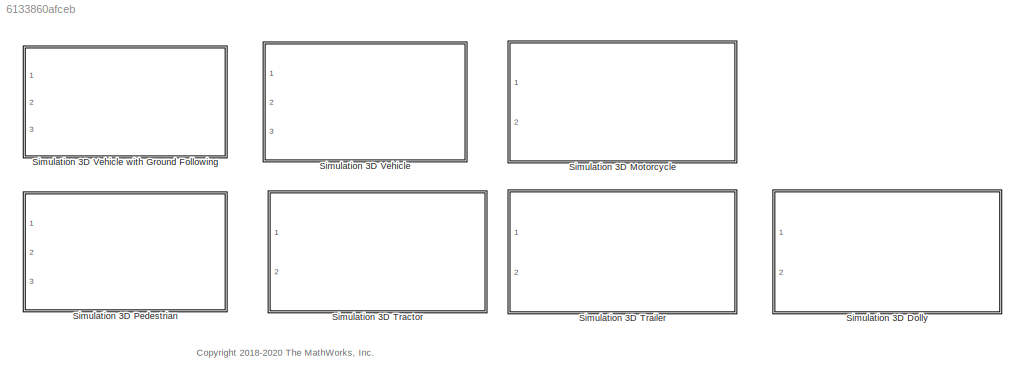
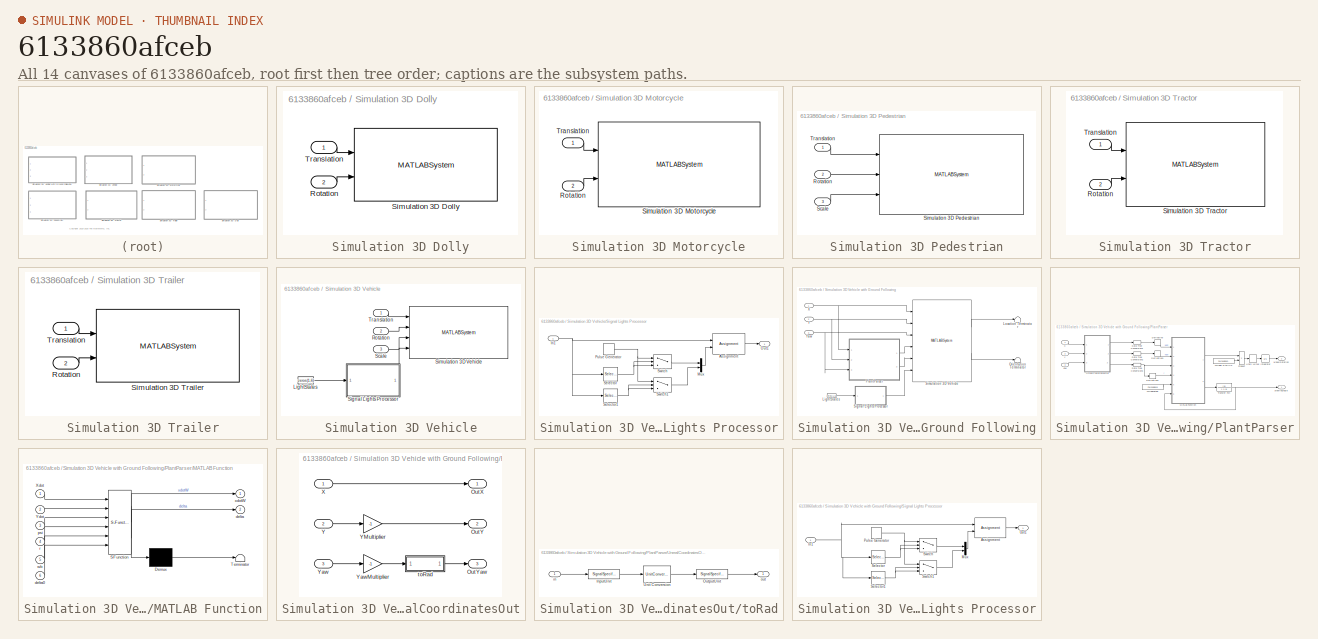
[diagram: thumbnail index - all 14 canvases of the model, root first then tree order]
MODEL slx_6133860afceb
KIND library
CONFIG AbsTol = auto
CONFIG EnableMultiTasking = off
CONFIG FixedStep = auto
CONFIG MaxStep = auto
CONFIG MinStep = auto
CONFIG RelTol = 1e-3
CONFIG SampleTimeConstraint = Unconstrained
CONFIG SolverName = VariableStepAuto
CONFIG StartTime = 0.0
CONFIG StopTime = 10.0
BLOCK [SubSystem] Simulation 3D Dolly
  CopyFcn = sim3d.SimPool.copyCallback(gcb);
  DestroyFcn = sim3d.SimPool.DestroyCallback(gcb)
  LoadFcn = sim3d.SimPool.loadCallback(gcb)
  NameChangeFcn = sim3d.SimPool.nameChangeCallback(gcb)
  Ports = [2]
  PostSaveFcn = sim3d.SimPool.postSaveCallback(gcb)
  PreDeleteFcn = sim3d.SimPool.preDeleteCallback(gcb);
  Priority = -1
  RequestExecContextInheritance = off
  UndoDeleteFcn = sim3d.SimPool.UndoDeleteCallback(gcb)
BLOCK [Inport] Simulation 3D Dolly/Rotation
  Port = 2
BLOCK [MATLABSystem] Simulation 3D Dolly/Simulation 3D Dolly
  MaskDisplay = disp('Dolly');\nport_label('input',1,'translation');\nport_label('input',2,'rotation');
  MaskType = Simulation3DDolly
  Mesh = One-axle dolly
  Ports = [2]
  Rotation = Rotation
  SampleTime = SampleTime
  Scale = Scale
  System = Simulation3DDolly
  Translation = Translation
BLOCK [Inport] Simulation 3D Dolly/Translation
BLOCK [SubSystem] Simulation 3D Motorcycle
  CopyFcn = sim3d.SimPool.copyCallback(gcb);
  DestroyFcn = sim3d.SimPool.DestroyCallback(gcb)
  LoadFcn = sim3d.SimPool.loadCallback(gcb)
  NameChangeFcn = sim3d.SimPool.nameChangeCallback(gcb)
  Ports = [2]
  PostSaveFcn = sim3d.SimPool.postSaveCallback(gcb)
  PreDeleteFcn = sim3d.SimPool.preDeleteCallback(gcb);
  Priority = -1
  RequestExecContextInheritance = off
  UndoDeleteFcn = sim3d.SimPool.UndoDeleteCallback(gcb)
BLOCK [Inport] Simulation 3D Motorcycle/Rotation
  Port = 2
BLOCK [MATLABSystem] Simulation 3D Motorcycle/Simulation 3D Motorcycle
  MaskDisplay = disp('Motorcycle');\nport_label('input',1,'translation');\nport_label('input',2,'rotation');
  MaskType = Simulation3DMotorcycle
  Mesh = Sports bike
  MotorcycleColor = Red
  Ports = [2]
  Rotation = Rotation
  SampleTime = SampleTime
  Scale = ones( 5, 3 )
  System = Simulation3DMotorcycle
  Translation = Translation
BLOCK [Inport] Simulation 3D Motorcycle/Translation
BLOCK [SubSystem] Simulation 3D Pedestrian
  CopyFcn = sim3d.SimPool.copyCallback(gcb);
  DestroyFcn = sim3d.SimPool.DestroyCallback(gcb)
  LoadFcn = sim3d.SimPool.loadCallback(gcb)
  NameChangeFcn = sim3d.SimPool.nameChangeCallback(gcb)
  Ports = [3]
  PostSaveFcn = sim3d.SimPool.postSaveCallback(gcb)
  PreDeleteFcn = sim3d.SimPool.preDeleteCallback(gcb);
  Priority = -1
  RequestExecContextInheritance = off
  UndoDeleteFcn = sim3d.SimPool.UndoDeleteCallback(gcb)
BLOCK [Inport] Simulation 3D Pedestrian/Rotation
  Port = 2
  Unit = m
BLOCK [Inport] Simulation 3D Pedestrian/Scale
  Port = 3
  Unit = deg
BLOCK [MATLABSystem] Simulation 3D Pedestrian/Simulation 3D Pedestrian
  ActorTag = Pedestrian1
  HairColor = Red
  MaskDisplay = disp('Pedestrian');\nport_label('input',1,'translation');\nport_label('input',2,'rotation');\nport_label('input',3,'scale');
  MaskType = Simulation3DPedestrian
  PedestrianType = human_01
  Ports = [3]
  SampleTime = SampleTime
  SkinTone = Red
  System = Simulation3DPedestrian
  ZoffsetPos = ZoffsetPos
BLOCK [Inport] Simulation 3D Pedestrian/Translation
  Unit = m
BLOCK [SubSystem] Simulation 3D Tractor
  CopyFcn = sim3d.SimPool.copyCallback(gcb);
  DestroyFcn = sim3d.SimPool.DestroyCallback(gcb)
  LoadFcn = sim3d.SimPool.loadCallback(gcb)
  NameChangeFcn = sim3d.SimPool.nameChangeCallback(gcb)
  Ports = [2]
  PostSaveFcn = sim3d.SimPool.postSaveCallback(gcb)
  PreDeleteFcn = sim3d.SimPool.preDeleteCallback(gcb);
  Priority = -1
  RequestExecContextInheritance = off
  UndoDeleteFcn = sim3d.SimPool.UndoDeleteCallback(gcb)
BLOCK [Inport] Simulation 3D Tractor/Rotation
  Port = 2
BLOCK [MATLABSystem] Simulation 3D Tractor/Simulation 3D Tractor
  MaskDisplay = disp('Tractor');\nport_label('input',1,'translation');\nport_label('input',2,'rotation');
  MaskType = Simulation3DTractor
  Mesh = Conventional tractor
  Ports = [2]
  Rotation = Rotation
  SampleTime = SampleTime
  System = Simulation3DTractor
  TractorColor = Red
  Translation = Translation
BLOCK [Inport] Simulation 3D Tractor/Translation
BLOCK [SubSystem] Simulation 3D Trailer
  CopyFcn = sim3d.SimPool.copyCallback(gcb);
  DestroyFcn = sim3d.SimPool.DestroyCallback(gcb)
  LoadFcn = sim3d.SimPool.loadCallback(gcb)
  NameChangeFcn = sim3d.SimPool.nameChangeCallback(gcb)
  Ports = [2]
  PostSaveFcn = sim3d.SimPool.postSaveCallback(gcb)
  PreDeleteFcn = sim3d.SimPool.preDeleteCallback(gcb);
  Priority = -1
  RequestExecContextInheritance = off
  UndoDeleteFcn = sim3d.SimPool.UndoDeleteCallback(gcb)
BLOCK [Inport] Simulation 3D Trailer/Rotation
  Port = 2
BLOCK [MATLABSystem] Simulation 3D Trailer/Simulation 3D Trailer
  MaskDisplay = disp('Trailer');\nport_label('input',1,'translation');\nport_label('input',2,'rotation');
  MaskType = Simulation3DTrailer
  Mesh = Two-axle trailer
  Ports = [2]
  Rotation = Rotation
  SampleTime = SampleTime
  System = Simulation3DTrailer
  Translation = Translation
BLOCK [Inport] Simulation 3D Trailer/Translation
BLOCK [SubSystem] Simulation 3D Vehicle
  CopyFcn = sim3d.SimPool.copyCallback(gcb);
  DestroyFcn = sim3d.SimPool.DestroyCallback(gcb)
  LoadFcn = sim3d.SimPool.loadCallback(gcb)
  NameChangeFcn = sim3d.SimPool.nameChangeCallback(gcb)
  Ports = [3]
  PostSaveFcn = sim3d.SimPool.postSaveCallback(gcb)
  PreDeleteFcn = sim3d.SimPool.preDeleteCallback(gcb);
  Priority = -1
  RequestExecContextInheritance = off
  UndoDeleteFcn = sim3d.SimPool.UndoDeleteCallback(gcb)
BLOCK [SubSystem] Simulation 3D Vehicle with Ground Following
  CopyFcn = sim3d.SimPool.copyCallback(gcb);
  DestroyFcn = sim3d.SimPool.DestroyCallback(gcb)
  LoadFcn = sim3d.SimPool.loadCallback(gcb)
  NameChangeFcn = sim3d.SimPool.nameChangeCallback(gcb)
  Ports = [3]
  PostSaveFcn = sim3d.SimPool.postSaveCallback(gcb)
  PreDeleteFcn = sim3d.SimPool.preDeleteCallback(gcb);
  Priority = -1
  RequestExecContextInheritance = off
  UndoDeleteFcn = sim3d.SimPool.UndoDeleteCallback(gcb)
BLOCK [Constant] Simulation 3D Vehicle with Ground Following/LightStates
  Value = zeros(1,6)
BLOCK [Terminator] Simulation 3D Vehicle with Ground Following/Location Terminator
BLOCK [Terminator] Simulation 3D Vehicle with Ground Following/Orientation Terminator
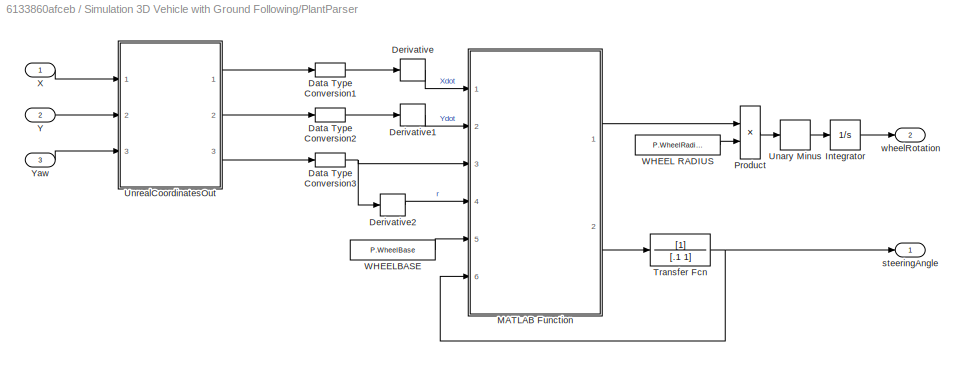
BLOCK [SubSystem] Simulation 3D Vehicle with Ground Following/PlantParser
  Ports = [3, 2]
  RequestExecContextInheritance = off
BLOCK [DataTypeConversion] Simulation 3D Vehicle with Ground Following/PlantParser/Data Type Conversion1
  OutDataTypeStr = double
  RndMeth = Floor
  SaturateOnIntegerOverflow = off
BLOCK [DataTypeConversion] Simulation 3D Vehicle with Ground Following/PlantParser/Data Type Conversion2
  OutDataTypeStr = double
  RndMeth = Floor
  SaturateOnIntegerOverflow = off
BLOCK [DataTypeConversion] Simulation 3D Vehicle with Ground Following/PlantParser/Data Type Conversion3
  OutDataTypeStr = double
  RndMeth = Floor
  SaturateOnIntegerOverflow = off
BLOCK [Derivative] Simulation 3D Vehicle with Ground Following/PlantParser/Derivative
  CoefficientInTFapproximation = 1e-3
BLOCK [Derivative] Simulation 3D Vehicle with Ground Following/PlantParser/Derivative1
  CoefficientInTFapproximation = 1e-3
BLOCK [Derivative] Simulation 3D Vehicle with Ground Following/PlantParser/Derivative2
  CoefficientInTFapproximation = 1e-3
BLOCK [Integrator] Simulation 3D Vehicle with Ground Following/PlantParser/Integrator
  Ports = [1, 1]
  WrapState = on
  WrappedStateLowerValue = 0
  WrappedStateUpperValue = 2*pi
  ZeroCross = off
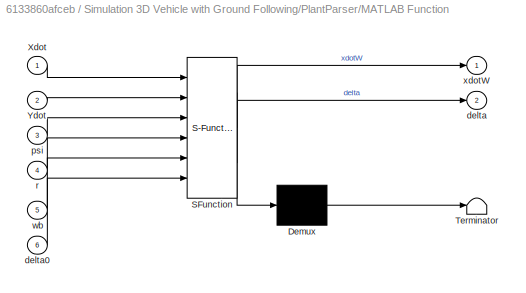
BLOCK [SubSystem] Simulation 3D Vehicle with Ground Following/PlantParser/MATLAB Function
  ErrorFcn = Stateflow.Translate.translate
  PermitHierarchicalResolution = ExplicitOnly
  Ports = [6, 2]
  RequestExecContextInheritance = off
  SFBlockType = MATLAB Function
  TreatAsAtomicUnit = on
BLOCK [Demux] Simulation 3D Vehicle with Ground Following/PlantParser/MATLAB Function/ Demux 
  Outputs = 1
  Ports = [1, 1]
BLOCK [S-Function] Simulation 3D Vehicle with Ground Following/PlantParser/MATLAB Function/ SFunction 
  EnableBusSupport = off
  FunctionName = sf_sfun
  PortCounts = [6 3]
  Ports = [6, 3]
  SFcnIsStateOwnerBlock = off
  SFunctionDeploymentMode = off
  Tag = Stateflow S-Function 1
BLOCK [Terminator] Simulation 3D Vehicle with Ground Following/PlantParser/MATLAB Function/ Terminator 
BLOCK [Inport] Simulation 3D Vehicle with Ground Following/PlantParser/MATLAB Function/Xdot
BLOCK [Inport] Simulation 3D Vehicle with Ground Following/PlantParser/MATLAB Function/Ydot
  Port = 2
BLOCK [Outport] Simulation 3D Vehicle with Ground Following/PlantParser/MATLAB Function/delta
  Port = 2
  VectorParamsAs1DForOutWhenUnconnected = off
BLOCK [Inport] Simulation 3D Vehicle with Ground Following/PlantParser/MATLAB Function/delta0
  Port = 6
BLOCK [Inport] Simulation 3D Vehicle with Ground Following/PlantParser/MATLAB Function/psi
  Port = 3
BLOCK [Inport] Simulation 3D Vehicle with Ground Following/PlantParser/MATLAB Function/r
  Port = 4
BLOCK [Inport] Simulation 3D Vehicle with Ground Following/PlantParser/MATLAB Function/wb
  Port = 5
BLOCK [Outport] Simulation 3D Vehicle with Ground Following/PlantParser/MATLAB Function/xdotW
  VectorParamsAs1DForOutWhenUnconnected = off
BLOCK [Product] Simulation 3D Vehicle with Ground Following/PlantParser/Product
  Inputs = */
  Ports = [2, 1]
BLOCK [TransferFcn] Simulation 3D Vehicle with Ground Following/PlantParser/Transfer Fcn
  Denominator = [.1 1]
BLOCK [UnaryMinus] Simulation 3D Vehicle with Ground Following/PlantParser/Unary Minus
BLOCK [SubSystem] Simulation 3D Vehicle with Ground Following/PlantParser/UnrealCoordinatesOut
  Ports = [3, 3]
  RequestExecContextInheritance = off
BLOCK [Outport] Simulation 3D Vehicle with Ground Following/PlantParser/UnrealCoordinatesOut/OutX
  VectorParamsAs1DForOutWhenUnconnected = off
BLOCK [Outport] Simulation 3D Vehicle with Ground Following/PlantParser/UnrealCoordinatesOut/OutY
  Port = 2
  VectorParamsAs1DForOutWhenUnconnected = off
BLOCK [Outport] Simulation 3D Vehicle with Ground Following/PlantParser/UnrealCoordinatesOut/OutYaw
  Port = 3
  VectorParamsAs1DForOutWhenUnconnected = off
BLOCK [Inport] Simulation 3D Vehicle with Ground Following/PlantParser/UnrealCoordinatesOut/X
BLOCK [Inport] Simulation 3D Vehicle with Ground Following/PlantParser/UnrealCoordinatesOut/Y
  Port = 2
BLOCK [Gain] Simulation 3D Vehicle with Ground Following/PlantParser/UnrealCoordinatesOut/YMultiplier
  Gain = -1
BLOCK [Inport] Simulation 3D Vehicle with Ground Following/PlantParser/UnrealCoordinatesOut/Yaw
  Port = 3
BLOCK [Gain] Simulation 3D Vehicle with Ground Following/PlantParser/UnrealCoordinatesOut/YawMultiplier
  Gain = -1
BLOCK [SubSystem] Simulation 3D Vehicle with Ground Following/PlantParser/UnrealCoordinatesOut/toRad
  Ports = [1, 1]
  RequestExecContextInheritance = off
BLOCK [SignalSpecification] Simulation 3D Vehicle with Ground Following/PlantParser/UnrealCoordinatesOut/toRad/InputUnit
  Unit = deg
BLOCK [SignalSpecification] Simulation 3D Vehicle with Ground Following/PlantParser/UnrealCoordinatesOut/toRad/OutputUnit
  Unit = rad
BLOCK [UnitConversion] Simulation 3D Vehicle with Ground Following/PlantParser/UnrealCoordinatesOut/toRad/Unit Conversion
BLOCK [Inport] Simulation 3D Vehicle with Ground Following/PlantParser/UnrealCoordinatesOut/toRad/in
BLOCK [Outport] Simulation 3D Vehicle with Ground Following/PlantParser/UnrealCoordinatesOut/toRad/out
  VectorParamsAs1DForOutWhenUnconnected = off
BLOCK [Constant] Simulation 3D Vehicle with Ground Following/PlantParser/WHEEL RADIUS
  OutDataTypeStr = double
  Value = P.WheelRadius
BLOCK [Constant] Simulation 3D Vehicle with Ground Following/PlantParser/WHEELBASE
  OutDataTypeStr = double
  Value = P.WheelBase
BLOCK [Inport] Simulation 3D Vehicle with Ground Following/PlantParser/X
BLOCK [Inport] Simulation 3D Vehicle with Ground Following/PlantParser/Y
  Port = 2
BLOCK [Inport] Simulation 3D Vehicle with Ground Following/PlantParser/Yaw
  Port = 3
BLOCK [Outport] Simulation 3D Vehicle with Ground Following/PlantParser/steeringAngle
  VectorParamsAs1DForOutWhenUnconnected = off
BLOCK [Outport] Simulation 3D Vehicle with Ground Following/PlantParser/wheelRotation
  Port = 2
  VectorParamsAs1DForOutWhenUnconnected = off
BLOCK [SubSystem] Simulation 3D Vehicle with Ground Following/Signal Lights Processor
  Ports = [1, 1]
  RequestExecContextInheritance = off
BLOCK [Assignment] Simulation 3D Vehicle with Ground Following/Signal Lights Processor/Assignment
  DiagnosticForDimensions = Warning
  IndexOptions = Index vector (dialog)
  Indices = [5 6]
  OutputSizes = 1
  Ports = [2, 1]
BLOCK [Inport] Simulation 3D Vehicle with Ground Following/Signal Lights Processor/In1
BLOCK [Mux] Simulation 3D Vehicle with Ground Following/Signal Lights Processor/Mux
  DisplayOption = bar
  Inputs = 2
  Ports = [2, 1]
BLOCK [Outport] Simulation 3D Vehicle with Ground Following/Signal Lights Processor/Out1
BLOCK [DiscretePulseGenerator] Simulation 3D Vehicle with Ground Following/Signal Lights Processor/Pulse Generator
  Amplitude = true
  Period = SignallightPeriod
  Ports = [0, 1]
  PulseType = Time based
  PulseWidth = SignalPulseWidth
BLOCK [Selector] Simulation 3D Vehicle with Ground Following/Signal Lights Processor/Selector
  IndexOptions = Index vector (dialog)
  Indices = [5]
  InputPortWidth = 6
  OutputSizes = 1
  Ports = [1, 1]
BLOCK [Selector] Simulation 3D Vehicle with Ground Following/Signal Lights Processor/Selector1
  IndexOptions = Index vector (dialog)
  Indices = [6]
  InputPortWidth = 6
  OutputSizes = 1
  Ports = [1, 1]
BLOCK [Switch] Simulation 3D Vehicle with Ground Following/Signal Lights Processor/Switch
  Criteria = u2 ~= 0
  InputSameDT = off
  SaturateOnIntegerOverflow = off
BLOCK [Switch] Simulation 3D Vehicle with Ground Following/Signal Lights Processor/Switch1
  Criteria = u2 ~= 0
  InputSameDT = off
  SaturateOnIntegerOverflow = off
BLOCK [MATLABSystem] Simulation 3D Vehicle with Ground Following/Simulation 3D Vehicle
  ActorTag = SimulinkVehicle1
  AttenuationRadius = 10000
  BrakelightColor = [ 1, 0, 0 ]
  BrakelightIntensity = BrakelightIntensity
  CoordinateScheme = ISO
  EnableLightControls = false
  HeadligtColor = HeadlightColor
  HighBeamIntensity = HighBeamIntensity
  HighBeamRadius = HighBeamConeAngle
  IndicatorlightIntensity = SignallightIntensity
  InitialPos = InitialPos
  InitialRot = InitialRot
  LeftHeadlightLocation = [ 50, 0, 0 ]
  LeftHeadlightOrientation = LeftHeadlightOrientation
  LowBeamIntensity = LowBeamIntensity
  LowBeamRadius = LowBeamConeAngle
  MaskDisplay = disp('Vehicle');\nport_label('input',1,'X');\nport_label('input',2,'Y');\nport_label('input',3,'Yaw');\nport_label('input',4,'steerAngle');\nport_label('input',5,'wheelRotation');\nport_label('input',6,'LightStates');\nport_label('output',1,'Translation');\nport_label('output',2,'Rotation');
  MaskType = Simulation3DVehicleTerrainFb
  MatPath = /MathWorksSimulation/VehicleCommon/Materials/Lights/M_VehicleMatLight.M_VehicleMatLight
  MeshPath = /MathWorksSimulation/Vehicles/Muscle/Meshes/SK_MuscleCar.SK_MuscleCar
  PassVehMesh = Muscle car
  Ports = [6, 2]
  ReverselightColor = [ 1, 0.868, 0.3234 ]
  ReverselightIntensity = ReverselightIntensity
  RightHeadlightLocation = [ 50, 0, 0 ]
  RightHeadlightOrientation = RightHeadlightOrientation
  SampleTime = SampleTime
  SignallightColor = [ 1, 0.146, 0 ]
  System = Simulation3DVehicleTerrainFb
  TaillightColor = [1 0 0]
  TrackWidth = 1.9
  VehColor = Red
  WheelBase = 3
  WheelRadius = 0.35
BLOCK [Inport] Simulation 3D Vehicle with Ground Following/X
  Unit = m
BLOCK [Inport] Simulation 3D Vehicle with Ground Following/Y
  Port = 2
  Unit = m
BLOCK [Inport] Simulation 3D Vehicle with Ground Following/Yaw
  Port = 3
  Unit = deg
BLOCK [Constant] Simulation 3D Vehicle/LightStates
  Value = zeros(1,6)
BLOCK [Inport] Simulation 3D Vehicle/Rotation
  Port = 2
BLOCK [Inport] Simulation 3D Vehicle/Scale
  Port = 3
BLOCK [SubSystem] Simulation 3D Vehicle/Signal Lights Processor
  Ports = [1, 1]
  RequestExecContextInheritance = off
BLOCK [Assignment] Simulation 3D Vehicle/Signal Lights Processor/Assignment
  DiagnosticForDimensions = Warning
  IndexOptions = Index vector (dialog)
  Indices = [5 6]
  OutputSizes = 1
  Ports = [2, 1]
BLOCK [Inport] Simulation 3D Vehicle/Signal Lights Processor/In1
BLOCK [Mux] Simulation 3D Vehicle/Signal Lights Processor/Mux
  DisplayOption = bar
  Inputs = 2
  Ports = [2, 1]
BLOCK [Outport] Simulation 3D Vehicle/Signal Lights Processor/Out1
BLOCK [DiscretePulseGenerator] Simulation 3D Vehicle/Signal Lights Processor/Pulse Generator
  Amplitude = true
  Period = SignallightPeriod
  Ports = [0, 1]
  PulseType = Time based
  PulseWidth = SignalPulseWidth
BLOCK [Selector] Simulation 3D Vehicle/Signal Lights Processor/Selector
  IndexOptions = Index vector (dialog)
  Indices = [5]
  InputPortWidth = 6
  OutputSizes = 1
  Ports = [1, 1]
BLOCK [Selector] Simulation 3D Vehicle/Signal Lights Processor/Selector1
  IndexOptions = Index vector (dialog)
  Indices = [6]
  InputPortWidth = 6
  OutputSizes = 1
  Ports = [1, 1]
BLOCK [Switch] Simulation 3D Vehicle/Signal Lights Processor/Switch
  Criteria = u2 ~= 0
  InputSameDT = off
  SaturateOnIntegerOverflow = off
BLOCK [Switch] Simulation 3D Vehicle/Signal Lights Processor/Switch1
  Criteria = u2 ~= 0
  InputSameDT = off
  SaturateOnIntegerOverflow = off
BLOCK [MATLABSystem] Simulation 3D Vehicle/Simulation 3D Vehicle
  AttenuationRadius = 10000
  BrakelightColor = [ 1, 0, 0 ]
  BrakelightIntensity = BrakelightIntensity
  EnableLightControls = false
  HeadligtColor = HeadlightColor
  HighBeamIntensity = HighBeamIntensity
  HighBeamRadius = HighBeamConeAngle
  IndicatorlightIntensity = SignallightIntensity
  LeftHeadlightLocation = [ 50, 0, 0 ]
  LeftHeadlightOrientation = LeftHeadlightOrientation
  LowBeamIntensity = LowBeamIntensity
  LowBeamRadius = LowBeamConeAngle
  MaskDisplay = disp('Vehicle');\nport_label('input',1,'translation');\nport_label('input',2,'rotation');\nport_label('input',3,'scale');\nport_label('input',4,'LightStates');
  MaskType = Simulation3DVehicle
  MatPath = /MathWorksSimulation/VehicleCommon/Materials/Lights/M_VehicleMatLight.M_VehicleMatLight
  MeshPath = /MathWorksSimulation/Vehicles/Muscle/Meshes/SK_MuscleCar.SK_MuscleCar
  PassVehMesh = Muscle car
  Ports = [4]
  ReverselightColor = [ 1, 0.868, 0.3234 ]
  ReverselightIntensity = ReverselightIntensity
  RightHeadlightLocation = [ 50, 0, 0 ]
  RightHeadlightOrientation = RightHeadlightOrientation
  Rotation = Rotation
  SampleTime = SampleTime
  Scale = Scale
  SignallightColor = [ 1, 0.146, 0 ]
  System = Simulation3DVehicle
  TaillightColor = [1 0 0]
  Translation = Translation
  VehColor = Red
BLOCK [Inport] Simulation 3D Vehicle/Translation
ANNOTATION (root): <copyright redacted>
CHART Simulation 3D Vehicle with Ground Following/PlantParser/MATLAB Function states=1 transitions=1
  STATE_LABEL 'eML_blk_kernel()'
  STATE_LABEL 'SCRIPT:\nfunction [xdotW, delta] = WheelEstimation(Xdot, Ydot, psi, r, wb, delta0)\n    [xdotW, delta] = wheelEstCalc(Xdot, Ydot, psi, r, wb, delta0);\nend'
CHART  states=0 transitions=0
